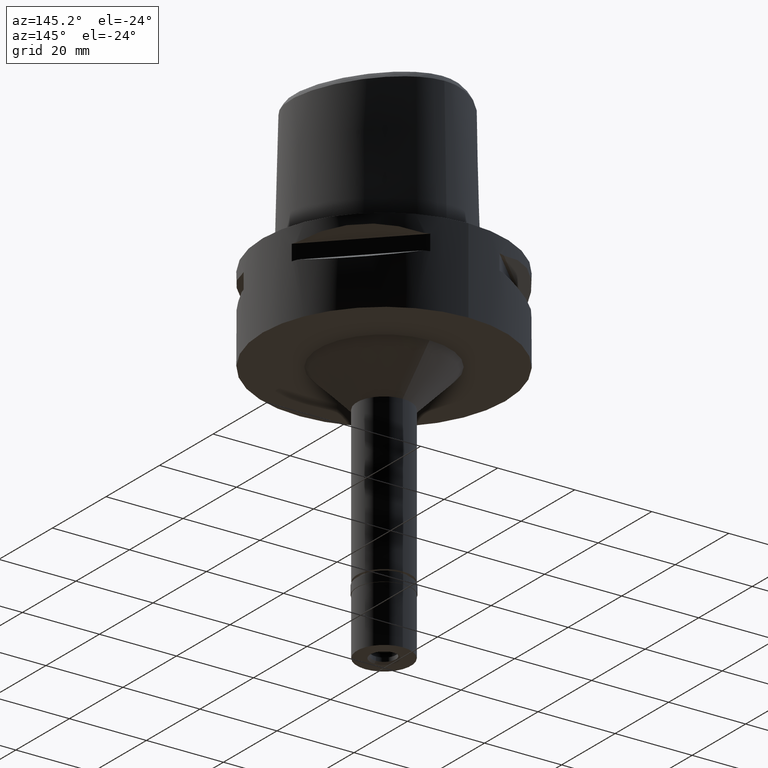
[diagram: clean part render]
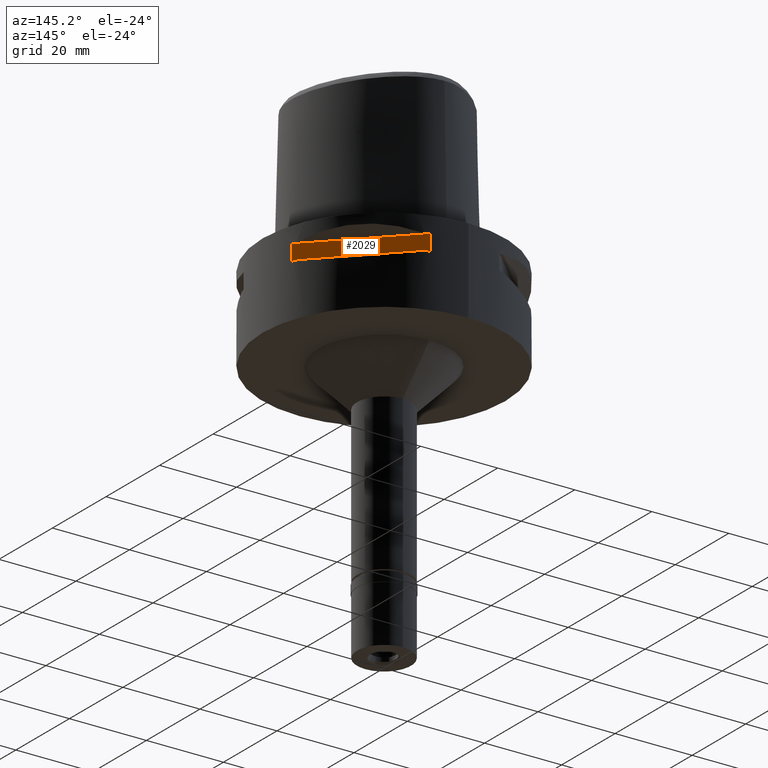
[diagram: same view with one face highlighted and labeled with its STEP entity id]
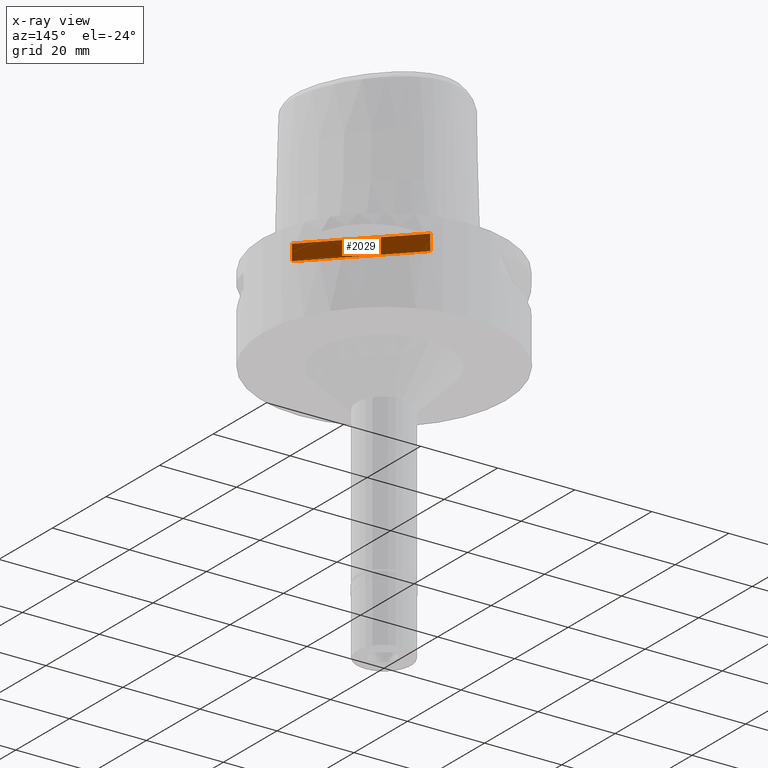
[diagram: x-ray of the same camera — body ghosted, the highlighted face saturated]
A machine part, auxiliary view. The second image highlights one B-rep face of the part: STEP entity #2029.
The next image is the same camera in x-ray: the body ghosted, the highlighted face saturated — about 0% of this face is hidden behind the body in this view.
In plain terms, the highlighted planar face has unit normal (-0.7071, -0.7071, 0).
Its self-contained STEP definition (entity closure, byte-faithful):
#19 = FACE_OUTER_BOUND ( 'NONE', #4450, .T. ) ;
#66 = LINE ( 'NONE', #3846, #3923 ) ;
#287 = VECTOR ( 'NONE', #3602, 1000.000000000000000 ) ;
#313 = LINE ( 'NONE', #4549, #2952 ) ;
#811 = LINE ( 'NONE', #3067, #949 ) ;
#895 = ORIENTED_EDGE ( 'NONE', *, *, #4790, .T. ) ;
#949 = VECTOR ( 'NONE', #2329, 1000.000000000000114 ) ;
#962 = EDGE_CURVE ( 'NONE', #4151, #3220, #313, .T. ) ;
#1372 = VERTEX_POINT ( 'NONE', #4034 ) ;
#1414 = ORIENTED_EDGE ( 'NONE', *, *, #3701, .T. ) ;
#1515 = PLANE ( 'NONE',  #4195 ) ;
#2029 = ADVANCED_FACE ( 'NONE', ( #19 ), #1515, .F. ) ;
#2054 = ORIENTED_EDGE ( 'NONE', *, *, #2102, .F. ) ;
#2102 = EDGE_CURVE ( 'NONE', #1372, #2428, #811, .T. ) ;
#2319 = CARTESIAN_POINT ( 'NONE',  ( 8.981198972019999616, 30.19251670572000279, -8.326544721229000245 ) ) ;
#2329 = DIRECTION ( 'NONE',  ( -0.7071067811865474617, 0.7071067811865474617, 0.0000000000000000000 ) ) ;
#2428 = VERTEX_POINT ( 'NONE', #4042 ) ;
#2630 = DIRECTION ( 'NONE',  ( -0.7071067811865475727, -0.7071067811865475727, 0.0000000000000000000 ) ) ;
#2651 = CARTESIAN_POINT ( 'NONE',  ( 7.212489168103000559, 31.96122650962999856, -4.226544721229000601 ) ) ;
#2952 = VECTOR ( 'NONE', #3348, 1000.000000000000114 ) ;
#3067 = CARTESIAN_POINT ( 'NONE',  ( 30.19251670572000279, 8.981198972016999349, -4.226544721229000601 ) ) ;
#3220 = VERTEX_POINT ( 'NONE', #2319 ) ;
#3277 = LINE ( 'NONE', #4020, #287 ) ;
#3348 = DIRECTION ( 'NONE',  ( -0.7071067811865474617, 0.7071067811865474617, 0.0000000000000000000 ) ) ;
#3602 = DIRECTION ( 'NONE',  ( 0.0000000000000000000, 0.0000000000000000000, 1.000000000000000000 ) ) ;
#3701 = EDGE_CURVE ( 'NONE', #3220, #2428, #3277, .T. ) ;
#3846 = CARTESIAN_POINT ( 'NONE',  ( 30.19251670572000279, 8.981198972016999349, -4.226544721229000601 ) ) ;
#3923 = VECTOR ( 'NONE', #4204, 1000.000000000000000 ) ;
#4020 = CARTESIAN_POINT ( 'NONE',  ( 8.981198972016999349, 30.19251670572000279, -8.326544721229000245 ) ) ;
#4034 = CARTESIAN_POINT ( 'NONE',  ( 30.19251670572000279, 8.981198972019999616, -4.226544721229000601 ) ) ;
#4042 = CARTESIAN_POINT ( 'NONE',  ( 8.981198972016999349, 30.19251670572000279, -4.226544721229000601 ) ) ;
#4151 = VERTEX_POINT ( 'NONE', #4316 ) ;
#4156 = DIRECTION ( 'NONE',  ( -0.7071067811865475727, 0.7071067811865475727, 0.0000000000000000000 ) ) ;
#4195 = AXIS2_PLACEMENT_3D ( 'NONE', #2651, #2630, #4156 ) ;
#4204 = DIRECTION ( 'NONE',  ( 0.0000000000000000000, 0.0000000000000000000, -1.000000000000000000 ) ) ;
#4316 = CARTESIAN_POINT ( 'NONE',  ( 30.19251670572000279, 8.981198972016999349, -8.326544721229000245 ) ) ;
#4450 = EDGE_LOOP ( 'NONE', ( #2054, #895, #4696, #1414 ) ) ;
#4549 = CARTESIAN_POINT ( 'NONE',  ( 30.19251670572000279, 8.981198972016999349, -8.326544721229000245 ) ) ;
#4696 = ORIENTED_EDGE ( 'NONE', *, *, #962, .T. ) ;
#4790 = EDGE_CURVE ( 'NONE', #1372, #4151, #66, .T. ) ;